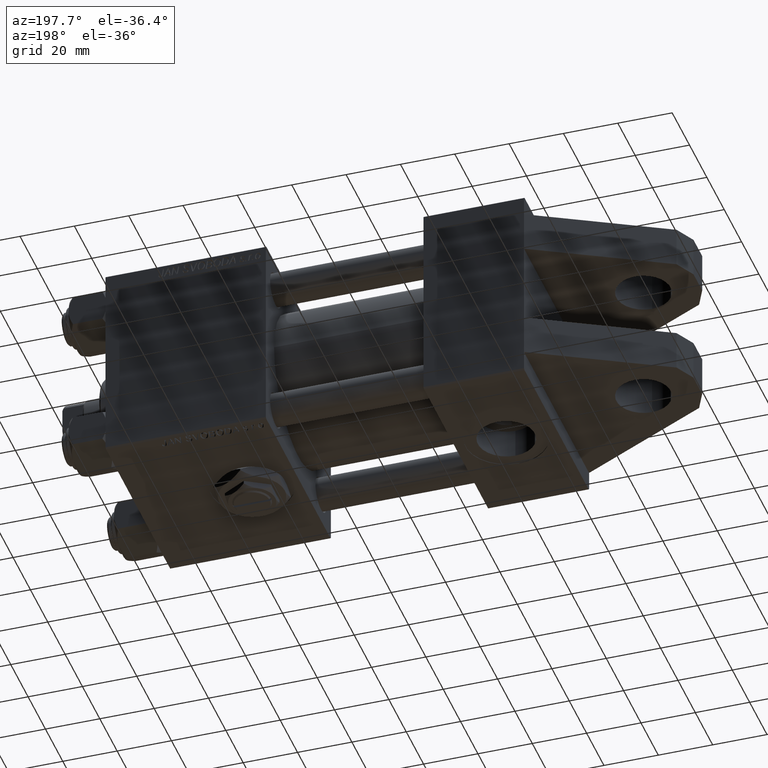
[diagram: clean part render]
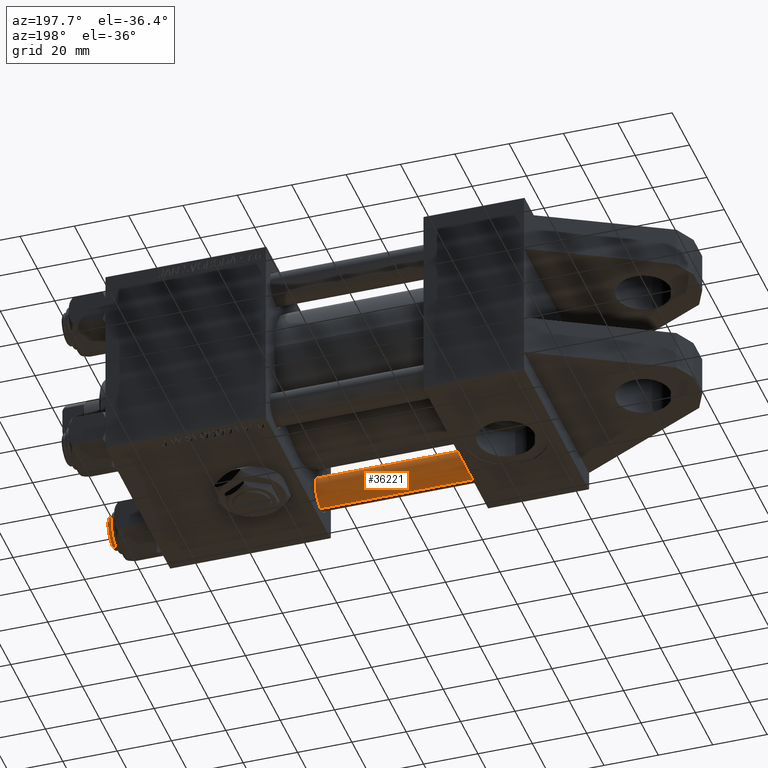
[diagram: same view with one face highlighted and labeled with its STEP entity id]
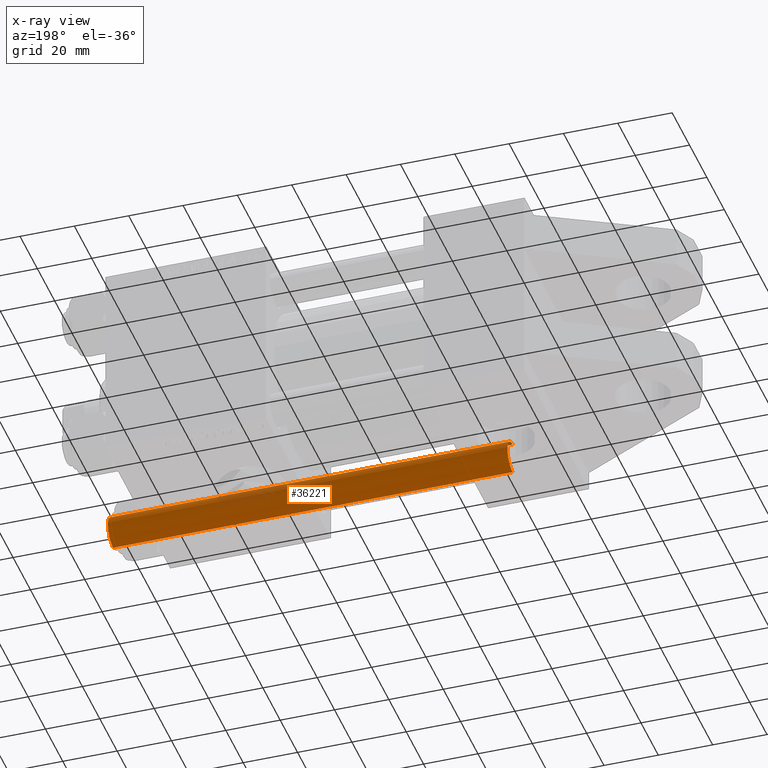
[diagram: x-ray of the same camera — body ghosted, the highlighted face saturated]
A machine part, auxiliary view. The second image highlights one B-rep face of the part: STEP entity #36221.
The next image is the same camera in x-ray: the body ghosted, the highlighted face saturated — about 5% of this face is hidden behind the body in this view.
In plain terms, the highlighted cylindrical surface (edge-blend (fillet) strip) has radius 6 mm, axis along (-1, -0, 0).
Its self-contained STEP definition (entity closure, byte-faithful):
#393 = DIRECTION ( 'NONE',  ( 1.000000000000000000, 0.000000000000000000, 0.000000000000000000 ) ) ;
#832 = VERTEX_POINT ( 'NONE', #50314 ) ;
#2091 = DIRECTION ( 'NONE',  ( -1.000000000000000000, 0.000000000000000000, 0.000000000000000000 ) ) ;
#2453 = ORIENTED_EDGE ( 'NONE', *, *, #28777, .T. ) ;
#2607 = CYLINDRICAL_SURFACE ( 'NONE', #16503, 6.000000000000000888 ) ;
#7031 = DIRECTION ( 'NONE',  ( 1.000000000000000000, 0.000000000000000000, 0.000000000000000000 ) ) ;
#7493 = CARTESIAN_POINT ( 'NONE',  ( 6.000000000000000888, 7.347880794884120722E-16, 147.5000000000000000 ) ) ;
#10162 = CARTESIAN_POINT ( 'NONE',  ( 0.000000000000000000, 0.000000000000000000, 148.0000000000000000 ) ) ;
#10666 = DIRECTION ( 'NONE',  ( -0.000000000000000000, -0.000000000000000000, 1.000000000000000000 ) ) ;
#12241 = CIRCLE ( 'NONE', #20517, 6.000000000000000888 ) ;
#13163 = CARTESIAN_POINT ( 'NONE',  ( -6.000000000000000888, 0.000000000000000000, 148.0000000000000000 ) ) ;
#13892 = VECTOR ( 'NONE', #36624, 1000.000000000000000 ) ;
#14315 = CARTESIAN_POINT ( 'NONE',  ( 0.000000000000000000, 0.000000000000000000, 0.5000000000000281997 ) ) ;
#16246 = CARTESIAN_POINT ( 'NONE',  ( -6.000000000000000888, 0.000000000000000000, 0.5000000000000281997 ) ) ;
#16503 = AXIS2_PLACEMENT_3D ( 'NONE', #10162, #18976, #2091 ) ;
#16607 = LINE ( 'NONE', #32982, #13892 ) ;
#16684 = EDGE_CURVE ( 'NONE', #22637, #832, #45466, .T. ) ;
#18976 = DIRECTION ( 'NONE',  ( -0.000000000000000000, -0.000000000000000000, -1.000000000000000000 ) ) ;
#19264 = ORIENTED_EDGE ( 'NONE', *, *, #29021, .F. ) ;
#20517 = AXIS2_PLACEMENT_3D ( 'NONE', #14315, #10666, #7031 ) ;
#22637 = VERTEX_POINT ( 'NONE', #7493 ) ;
#25584 = VECTOR ( 'NONE', #36040, 1000.000000000000000 ) ;
#27474 = DIRECTION ( 'NONE',  ( 0.000000000000000000, 0.000000000000000000, -1.000000000000000000 ) ) ;
#28777 = EDGE_CURVE ( 'NONE', #40661, #35235, #12241, .T. ) ;
#29021 = EDGE_CURVE ( 'NONE', #22637, #35235, #16607, .T. ) ;
#29311 = EDGE_CURVE ( 'NONE', #832, #40661, #47976, .T. ) ;
#29468 = CARTESIAN_POINT ( 'NONE',  ( 6.000000000000000888, 7.347880794884120722E-16, 0.5000000000000281997 ) ) ;
#29675 = ORIENTED_EDGE ( 'NONE', *, *, #16684, .T. ) ;
#30177 = FACE_OUTER_BOUND ( 'NONE', #38392, .T. ) ;
#32982 = CARTESIAN_POINT ( 'NONE',  ( 6.000000000000000888, 7.347880794884120722E-16, 148.0000000000000000 ) ) ;
#35235 = VERTEX_POINT ( 'NONE', #29468 ) ;
#35531 = AXIS2_PLACEMENT_3D ( 'NONE', #47194, #27474, #393 ) ;
#36040 = DIRECTION ( 'NONE',  ( -0.000000000000000000, -0.000000000000000000, -1.000000000000000000 ) ) ;
#36221 = ADVANCED_FACE ( 'NONE', ( #30177 ), #2607, .T. ) ;
#36624 = DIRECTION ( 'NONE',  ( -0.000000000000000000, -0.000000000000000000, -1.000000000000000000 ) ) ;
#38392 = EDGE_LOOP ( 'NONE', ( #19264, #29675, #49661, #2453 ) ) ;
#40661 = VERTEX_POINT ( 'NONE', #16246 ) ;
#45466 = CIRCLE ( 'NONE', #35531, 6.000000000000000888 ) ;
#47194 = CARTESIAN_POINT ( 'NONE',  ( 0.000000000000000000, 0.000000000000000000, 147.5000000000000000 ) ) ;
#47976 = LINE ( 'NONE', #13163, #25584 ) ;
#49661 = ORIENTED_EDGE ( 'NONE', *, *, #29311, .T. ) ;
#50314 = CARTESIAN_POINT ( 'NONE',  ( -6.000000000000000888, 0.000000000000000000, 147.5000000000000000 ) ) ;